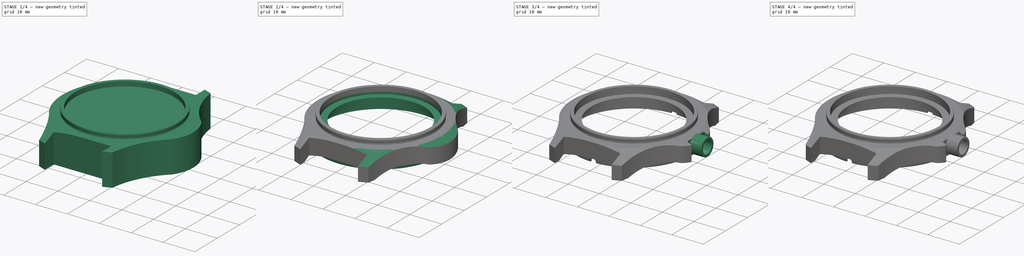
[diagram: build sequence overview — one tinted view per stage of 4, left to right]
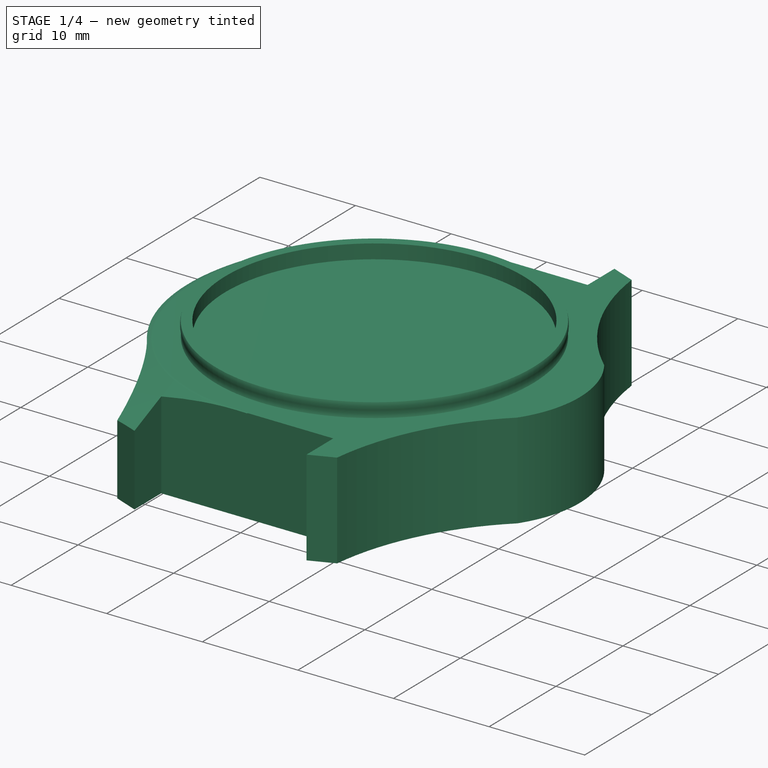
[diagram: stage 1 of 4 — iso view after this stage's code; geometry added in this stage tinted green]
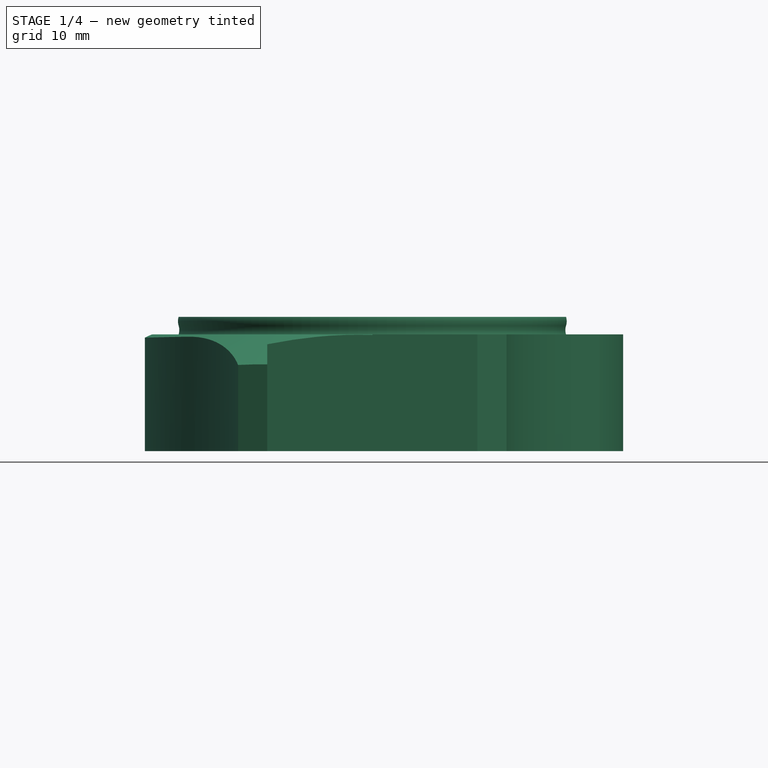
[diagram: stage 1 of 4 — front view after this stage's code; geometry added in this stage tinted green]
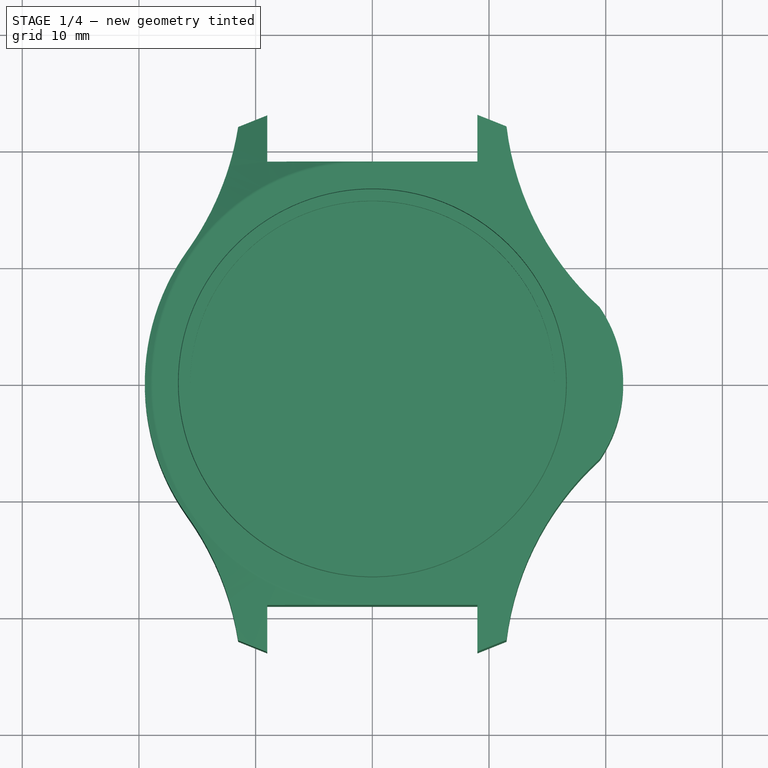
[diagram: stage 1 of 4 — top view after this stage's code; geometry added in this stage tinted green]
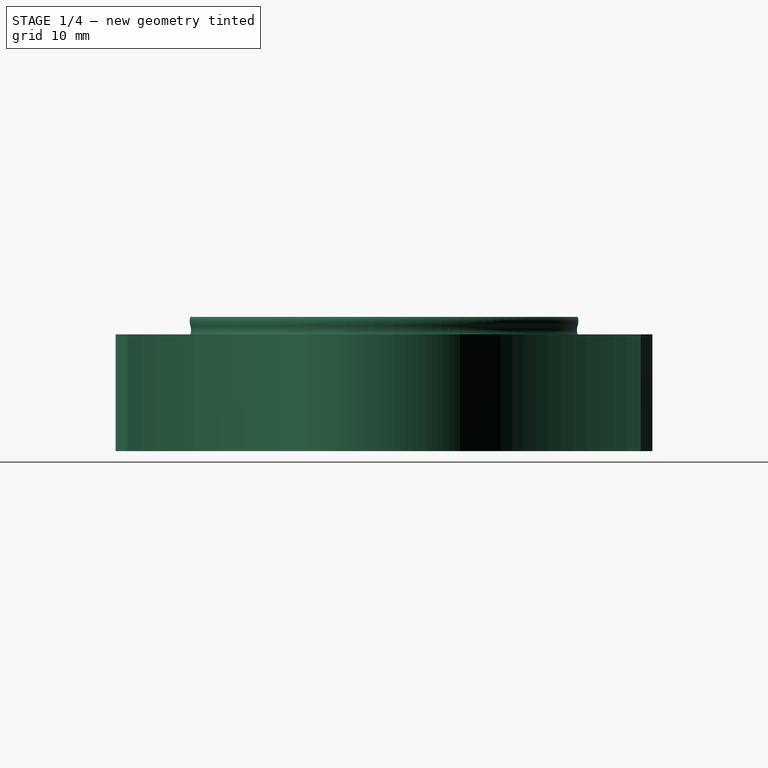
[diagram: stage 1 of 4 — right view after this stage's code; geometry added in this stage tinted green]
FCSTD DOCUMENT  (FreeCAD 0.19R20415 (Git))
Label: Vostok_Amphibia_Case_120
License: All rights reserved
LicenseURL: http://en.wikipedia.org/wiki/All_rights_reserved
objects: Sketcher::SketchObject×13, PartDesign::Pocket×4, PartDesign::Plane×3, PartDesign::Pad×2, PartDesign::Groove×2, Part::Fillet×2, PartDesign::Point×1, PartDesign::Revolution×1, PartDesign::SubtractivePipe×1, PartDesign::Mirrored×1, PartDesign::Body×1, Image::ImagePlane×1
note: 41 computed .brp shape members not serialized (recipe doc carries the construction recipe); baked Part::Feature solids carry a one-line shape summary decoded from their .brp

FEATURE [PartDesign::Point] DatumPoint
  AttacherType = Attacher::AttachEnginePoint
FEATURE [Sketcher::SketchObject] Sketch009
  MapMode = 5
  Placement = pos=(0,0,10) rot=(0,0,1;0rad)
  sketch-geometry (7):
    g0: ArcOfEllipse CenterX=0 CenterY=0 CenterZ=0 NormalX=0 NormalY=0 NormalZ=1 MajorRadius=23.015 MinorRadius=22 AngleXU=1.5708 StartAngle=0 EndAngle=3.14159
    g1: LineSegment [constr] StartX=0 StartY=23.015 StartZ=0 EndX=0 EndY=-23.015 EndZ=0
    g2: LineSegment [constr] StartX=-22 StartY=3.8e-15 StartZ=0 EndX=22 EndY=-3.8e-15 EndZ=0
    g3: GeomPoint X=-1.23e-14 Y=6.75945 Z=0
    g4: GeomPoint X=1.23e-14 Y=-6.75945 Z=0
    g5: LineSegment StartX=-10 StartY=20.5 StartZ=0 EndX=0 EndY=20.5 EndZ=0
    g6: LineSegment StartX=-7.1e-15 StartY=-20.5 StartZ=0 EndX=-10 EndY=-20.5 EndZ=0
  constraints (14):
    c: InternalAlignment(g1-g4 -> g0) x4
    c: PointOnObject(g0,g-1)
    c: Perpendicular(g-1,g1)
    c: DistanceX(g2) = -22
    c: PointOnObject(g1,g-2)
    c: PointOnObject(g0,g-2)
    c: PointOnObject(g0,g-2)
    c: PointOnObject(g5,g-2)
    c: Horizontal(g6)
    c: Symmetric(g6,g5,g-1)
    c: DistanceY(g6) = -20.5
    c: Symmetric(g5,g6,g2)
    c: DistanceX(g5) = -10
    c: PointOnObject(g6,g0)
FEATURE [PartDesign::Plane] DatumPlane
  Length = 60
  MapMode = 5
  Placement = pos=(0,0,0) rot=(0.57735,0.57735,0.57735;2.0944rad)
  ResizeMode = 0
  Support = -> [YZ_Plane]
  Width = 60
FEATURE [Sketcher::SketchObject] Sketch003
  MapMode = 5
  Placement = pos=(0,0,0) rot=(0.57735,0.57735,0.57735;2.0944rad)
  Support = -> [DatumPlane]
  sketch-geometry (6):
    g0: ArcOfCircle CenterX=-18.7887 CenterY=9.5 CenterZ=0 NormalX=0 NormalY=0 NormalZ=1 AngleXU=0 Radius=0.5 StartAngle=1.5708 EndAngle=2.00713
    g1: LineSegment StartX=-19 StartY=10 StartZ=0 EndX=-18.7887 EndY=10 EndZ=0
    g2: LineSegment StartX=-19 StartY=9.95315 StartZ=0 EndX=-28.8557 EndY=5.35739 EndZ=0
    g3: ArcOfCircle CenterX=-28.75 CenterY=5.13081 CenterZ=0 NormalX=0 NormalY=0 NormalZ=1 AngleXU=0 Radius=0.25 StartAngle=2.00713 EndAngle=3.14159
    g4: LineSegment StartX=-19 StartY=10 StartZ=0 EndX=-29 EndY=10 EndZ=0
    g5: LineSegment StartX=-29 StartY=10 StartZ=0 EndX=-29 EndY=5.13081 EndZ=0
  constraints (16):
    c: DistanceY(g4) = 10
    c: DistanceX(g4,g4) = 10
    c: Radius(g3) = 0.25
    c: Angle(g4,g2) = 0.436332
    c: Radius(g0) = 0.5
    c: DistanceX(g1) = -19
    c: Horizontal(g1)
    c: Tangent(g0,g1) = 1.5708
    c: Horizontal(g4)
    c: Coincident(g1,g4)
    c: Tangent(g0,g2) = -1.5708
    c: Vertical(g0,g1)
    c: Coincident(g5,g4)
    c: Vertical(g5)
    c: Tangent(g3,g2) = -1.5708
    c: Tangent(g3,g5) = -1.5708
FEATURE [Sketcher::SketchObject] Sketch011
  MapMode = 5
  Placement = pos=(0,0,0) rot=(0.57735,0.57735,0.57735;2.0944rad)
  Support = -> [DatumPlane]
  sketch-geometry (6):
    g0: LineSegment StartX=19 StartY=9.95315 StartZ=0 EndX=28.8557 EndY=5.35739 EndZ=0
    g1: ArcOfCircle CenterX=28.75 CenterY=5.13081 CenterZ=0 NormalX=0 NormalY=0 NormalZ=1 AngleXU=0 Radius=0.25 StartAngle=-9e-16 EndAngle=1.13446
    g2: ArcOfCircle CenterX=18.7887 CenterY=9.5 CenterZ=0 NormalX=0 NormalY=0 NormalZ=1 AngleXU=0 Radius=0.5 StartAngle=1.13446 EndAngle=1.5708
    g3: LineSegment StartX=19 StartY=10 StartZ=0 EndX=18.7887 EndY=10 EndZ=0
    g4: LineSegment StartX=19 StartY=10 StartZ=0 EndX=29 EndY=10 EndZ=0
    g5: LineSegment StartX=29 StartY=10 StartZ=0 EndX=29 EndY=5.13081 EndZ=0
  constraints (16):
    c: Tangent(g0,g1) = 1.5708
    c: Tangent(g0,g2) = 1.5708
    c: Horizontal(g3)
    c: Tangent(g2,g3) = -1.5708
    c: Radius(g1) = 0.25
    c: Vertical(g0,g3)
    c: Radius(g2) = 0.5
    c: Coincident(g3,g4)
    c: Horizontal(g4)
    c: Coincident(g4,g5)
    c: Vertical(g5)
    c: Tangent(g5,g1) = 1.5708
    c: DistanceX(g4,g4) = 10
    c: DistanceY(g4) = 10
    c: Angle(g0,g4) = 0.436332
    c: DistanceX(g3) = 19
FEATURE [Sketcher::SketchObject] Sketch
  MapMode = 5
  Support = -> [XY_Plane]
  sketch-geometry (19):
    g0: ArcOfCircle CenterX=0 CenterY=-1.1e-15 CenterZ=0 NormalX=0 NormalY=0 NormalZ=1 AngleXU=0 Radius=19.5 StartAngle=2.52076 EndAngle=3.76242
    g1: ArcOfCircle CenterX=10 CenterY=-2e-16 CenterZ=0 NormalX=0 NormalY=0 NormalZ=1 AngleXU=0 Radius=11.5 StartAngle=5.68249 EndAngle=6.88388
    g2: GeomPoint X=21.5 Y=0 Z=0
    g3: GeomPoint X=-19.5 Y=0 Z=0
    g4: ArcOfCircle CenterX=-36.1961 CenterY=25.8861 CenterZ=0 NormalX=0 NormalY=0 NormalZ=1 AngleXU=0 Radius=25 StartAngle=5.66236 EndAngle=6.12711
    g5: ArcOfCircle CenterX=-36.1961 CenterY=-25.8861 CenterZ=0 NormalX=0 NormalY=0 NormalZ=1 AngleXU=0 Radius=25 StartAngle=0.156078 EndAngle=0.62083
    g6: GeomPoint X=11.5 Y=22 Z=0
    g7: ArcOfCircle CenterX=36.3215 CenterY=24.9823 CenterZ=0 NormalX=0 NormalY=0 NormalZ=1 AngleXU=0 Radius=25 StartAngle=3.26117 EndAngle=3.97361
    g8: LineSegment StartX=-9 StartY=-23 StartZ=0 EndX=-9 EndY=-19 EndZ=0
    g9: LineSegment StartX=-9 StartY=-19 StartZ=0 EndX=9 EndY=-19 EndZ=0
    g10: LineSegment StartX=9 StartY=-19 StartZ=0 EndX=9 EndY=-23 EndZ=0
    g11: LineSegment StartX=9 StartY=-23 StartZ=0 EndX=11.5 EndY=-22 EndZ=0
    g12: LineSegment StartX=-9 StartY=-23 StartZ=0 EndX=-11.5 EndY=-22 EndZ=0
    g13: LineSegment StartX=9 StartY=23 StartZ=0 EndX=9 EndY=19 EndZ=0
    g14: LineSegment StartX=9 StartY=19 StartZ=0 EndX=-9 EndY=19 EndZ=0
    g15: LineSegment StartX=-9 StartY=19 StartZ=0 EndX=-9 EndY=23 EndZ=0
    g16: LineSegment StartX=-9 StartY=23 StartZ=0 EndX=-11.5 EndY=22 EndZ=0
    g17: LineSegment StartX=9 StartY=23 StartZ=0 EndX=11.5 EndY=22 EndZ=0
    g18: ArcOfCircle CenterX=36.3215 CenterY=-24.9823 CenterZ=0 NormalX=0 NormalY=0 NormalZ=1 AngleXU=0 Radius=25 StartAngle=2.30958 EndAngle=3.02202
  constraints (47):
    c: PointOnObject(g2,g1)
    c: PointOnObject(g3,g0)
    c: PointOnObject(g3,g-1)
    c: PointOnObject(g2,g-1)
    c: DistanceX(g3,g2) = 41
    c: DistanceX(g3) = -19.5
    c: Symmetric(g0,g0,g-1)
    c: Tangent(g0,g5) = 1.5708
    c: Symmetric(g5,g4,g-1)
    c: Tangent(g0,g4) = 1.5708
    c: Symmetric(g6,g4,g-2)
    c: DistanceX(g4,g6) = 23
    c: DistanceY(g5,g4) = 44
    c: Radius(g4) = 25
    c: Coincident(g0,g-1)
    c: Coincident(g7,g6)
    c: Equal(g7,g4)
    c: Vertical(g8)
    c: Coincident(g8,g9)
    c: Coincident(g9,g10)
    c: Coincident(g10,g11)
    c: Coincident(g8,g12)
    c: Coincident(g12,g5)
    c: Vertical(g13)
    c: Coincident(g13,g14)
    c: Horizontal(g14)
    c: Coincident(g14,g15)
    c: Coincident(g15,g16)
    c: Coincident(g16,g4)
    c: Coincident(g13,g17)
    c: Coincident(g17,g6)
    c: Symmetric(g13,g15,g-2)
    c: DistanceX(g15,g13) = 18
    c: DistanceY(g13,g13) = 4
    c: DistanceY(g10,g13) = 46
    c: Symmetric(g8,g10,g-2)
    c: Symmetric(g9,g8,g-2)
    c: Symmetric(g8,g14,g-1)
    c: Symmetric(g8,g15,g-1)
    c: Symmetric(g11,g6,g-1)
    c: Coincident(g7,g1)
    c: Symmetric(g1,g1,g-1)
    c: Radius(g1) = 11.5
    c: Coincident(g18,g11)
    c: Coincident(g18,g1)
    c: Equal(g18,g7)
    c: DistanceY(g1,g1) = 13
FEATURE [PartDesign::Pad] Pad
  AllowMultiFace = false
  Length = 10
  Length2 = 100
  Profile = -> Sketch
  Type = 0
FEATURE [Sketcher::SketchObject] Sketch001
  MapMode = 5
  Placement = pos=(0,0,0) rot=(1,0,0;1.5708rad)
  Support = -> [XZ_Plane]
  sketch-geometry (5):
    g0: LineSegment StartX=15.6 StartY=10 StartZ=0 EndX=15.6 EndY=11.5 EndZ=0
    g1: LineSegment StartX=15.6 StartY=11.5 StartZ=0 EndX=16.6 EndY=11.5 EndZ=0
    g2: ArcOfCircle CenterX=17.7924 CenterY=10.375 CenterZ=0 NormalX=0 NormalY=0 NormalZ=1 AngleXU=0 Radius=1.25 StartAngle=2.8369 EndAngle=3.44629
    g3: LineSegment StartX=15.6 StartY=10 StartZ=0 EndX=16.6 EndY=10 EndZ=0
    g4: ArcOfCircle CenterX=15.4076 CenterY=11.125 CenterZ=0 NormalX=0 NormalY=0 NormalZ=1 AngleXU=0 Radius=1.25 StartAngle=5.97849 EndAngle=6.58788
  constraints (15):
    c: Vertical(g0)
    c: Coincident(g0,g1)
    c: Horizontal(g1)
    c: Coincident(g0,g3)
    c: Horizontal(g3)
    c: Coincident(g2,g3)
    c: Coincident(g4,g1)
    c: DistanceX(g1,g1) = 1
    c: Tangent(g4,g2) = 1.5708
    c: Vertical(g1,g2)
    c: DistanceY(g0,g0) = 1.5
    c: Symmetric(g1,g2,g2)
    c: Radius(g4) = 1.25
    c: DistanceY(g2) = 10
    c: DistanceX(g0) = 15.6
FEATURE [PartDesign::Revolution] Revolution
  AllowMultiFace = false
  Angle = 360
  Axis = (0,-2e-16,1)
  Base = (0,0,0)
  BaseFeature = -> Pad
  Profile = -> Sketch001
  ReferenceAxis = -> Sketch001 [V_Axis]
  Reversed = true
FEATURE [PartDesign::Plane] DatumPlane001
  Length = 60
  MapMode = 5
  Placement = pos=(0,0,0) rot=(1,0,0;1.5708rad)
  ResizeMode = 0
  Support = -> [XZ_Plane]
  Width = 60
FEATURE [Sketcher::SketchObject] Sketch005
  MapMode = 5
  Placement = pos=(0,0,0) rot=(1,0,0;1.5708rad)
  Support = -> [DatumPlane001]
  sketch-geometry (6):
    g0: LineSegment StartX=-24 StartY=10 StartZ=0 EndX=-19 EndY=10 EndZ=0
    g1: LineSegment StartX=-24 StartY=10 StartZ=0 EndX=-24 EndY=7.46235 EndZ=0
    g2: ArcOfCircle CenterX=-18.7887 CenterY=9.5 CenterZ=0 NormalX=0 NormalY=0 NormalZ=1 AngleXU=0 Radius=0.5 StartAngle=1.5708 EndAngle=2.00713
    g3: LineSegment StartX=-19 StartY=10 StartZ=0 EndX=-18.7887 EndY=10 EndZ=0
    g4: LineSegment StartX=-19 StartY=9.95315 StartZ=0 EndX=-23.8557 EndY=7.68892 EndZ=0
    g5: ArcOfCircle CenterX=-23.75 CenterY=7.46235 CenterZ=0 NormalX=0 NormalY=0 NormalZ=1 AngleXU=0 Radius=0.25 StartAngle=2.00713 EndAngle=3.14159
  constraints (17):
    c: Horizontal(g0)
    c: DistanceY(g0) = 10
    c: DistanceX(g0) = -19
    c: DistanceX(g0,g0) = 5
    c: Coincident(g1,g0)
    c: Vertical(g1)
    c: Coincident(g3,g0)
    c: Coincident(g3,g2)
    c: Tangent(g3,g2)
    c: Horizontal(g3)
    c: Vertical(g2,g0)
    c: Radius(g2) = 0.5
    c: Tangent(g2,g4) = -1.5708
    c: Tangent(g4,g5) = -1.5708
    c: Tangent(g5,g1) = -1.5708
    c: Radius(g5) = 0.25
    c: Angle(g0,g4) = 0.436332
FEATURE [PartDesign::SubtractivePipe] SubtractivePipe
  AllowMultiFace = false
  AuxilleryCurvelinear = true
  AuxillerySpineTangent = false
  BaseFeature = -> Revolution
  Binormal = (0,0,0)
  Mode = 0
  Profile = -> Sketch003
  Sections = -> [Sketch005,Sketch011]
  Spine = -> Sketch009 [Edge1]
  SpineTangent = false
  Transformation = 1
  Transition = 2
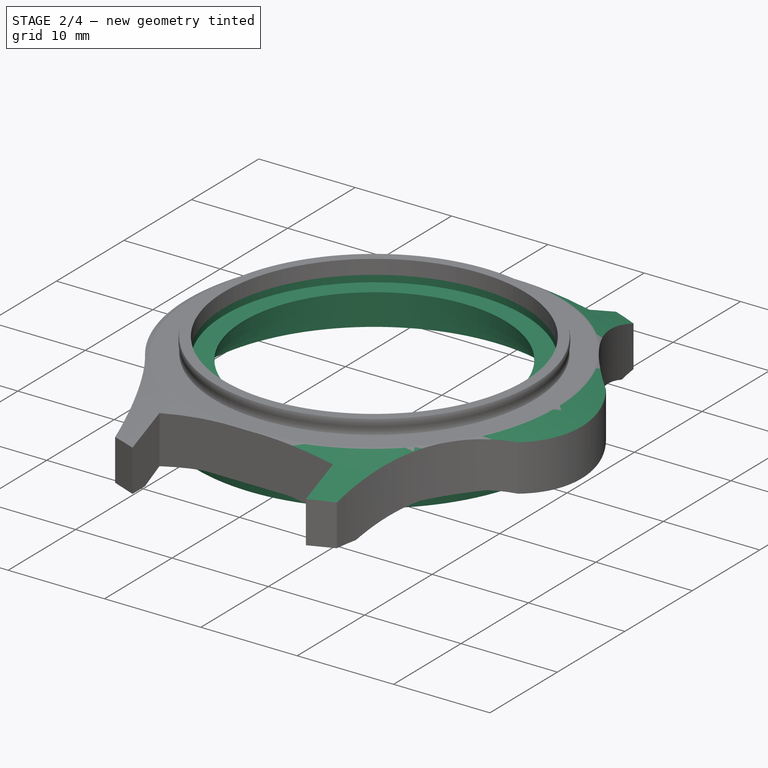
[diagram: stage 2 of 4 — iso view after this stage's code; geometry added in this stage tinted green]
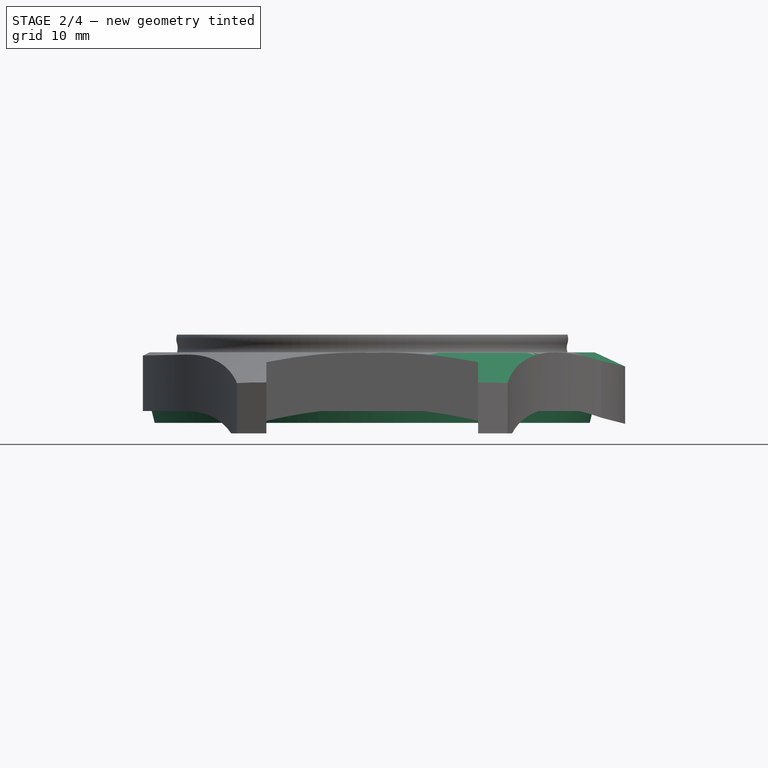
[diagram: stage 2 of 4 — front view after this stage's code; geometry added in this stage tinted green]
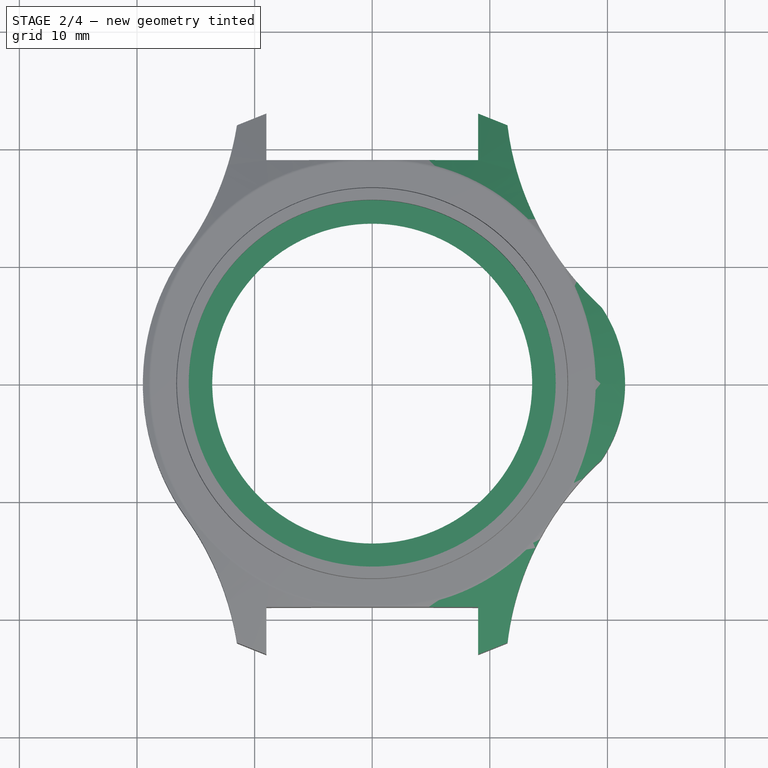
[diagram: stage 2 of 4 — top view after this stage's code; geometry added in this stage tinted green]
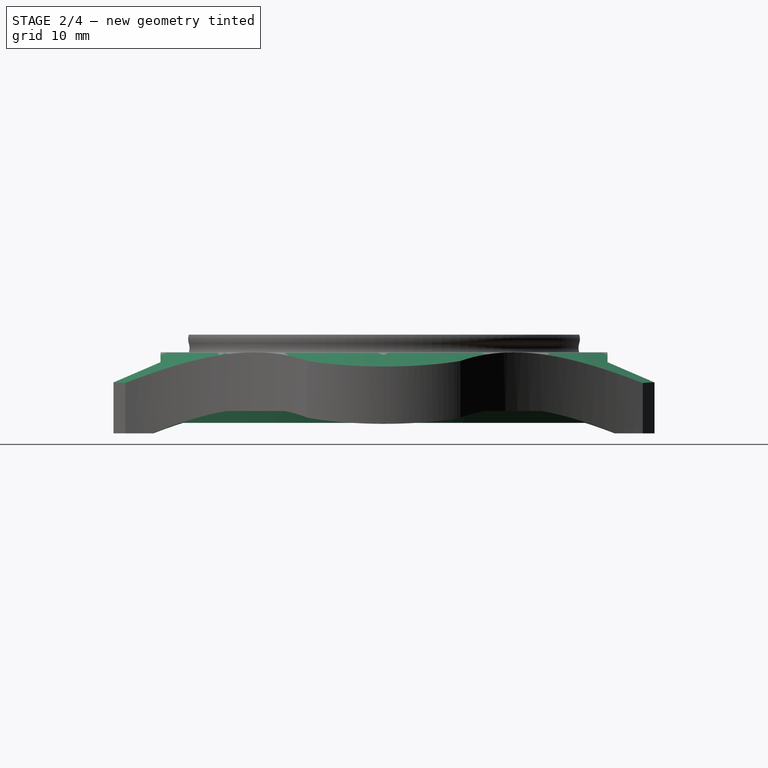
[diagram: stage 2 of 4 — right view after this stage's code; geometry added in this stage tinted green]
FEATURE [PartDesign::Mirrored] Mirrored
  BaseFeature = -> SubtractivePipe
  MirrorPlane = -> YZ_Plane
  Originals = -> [SubtractivePipe]
FEATURE [Sketcher::SketchObject] Sketch013
  MapMode = 5
  Placement = pos=(0,0,0) rot=(1,0,0;1.5708rad)
  Support = -> [XZ_Plane]
  sketch-geometry (4):
    g0: LineSegment StartX=-29.7309 StartY=0 StartZ=0 EndX=29.7309 EndY=0 EndZ=0
    g1: LineSegment StartX=29.7309 StartY=0 StartZ=0 EndX=29.7309 EndY=3 EndZ=0
    g2: LineSegment StartX=29.7309 StartY=3 StartZ=0 EndX=-29.7309 EndY=3 EndZ=0
    g3: LineSegment StartX=-29.7309 StartY=3 StartZ=0 EndX=-29.7309 EndY=0 EndZ=0
  constraints (10):
    c: Coincident(g0,g1)
    c: Coincident(g1,g2)
    c: Coincident(g2,g3)
    c: Coincident(g3,g0)
    c: Horizontal(g0)
    c: Vertical(g1)
    c: Vertical(g3)
    c: PointOnObject(g0,g-1)
    c: DistanceY(g1,g1) = 3
    c: Symmetric(g1,g2,g-2)
FEATURE [PartDesign::Pocket] Pocket
  AllowMultiFace = false
  BaseFeature = -> Mirrored
  Length = 5
  Length2 = 100
  Midplane = true
  Profile = -> Sketch013
  Type = 1
FEATURE [Sketcher::SketchObject] Sketch014
  MapMode = 5
  Placement = pos=(0,0,0) rot=(0.57735,0.57735,0.57735;2.0944rad)
  Support = -> [YZ_Plane]
  sketch-geometry (20):
    g0: LineSegment StartX=0 StartY=0 StartZ=0 EndX=0 EndY=19.1 EndZ=0
    g1: LineSegment StartX=18 StartY=6 StartZ=0 EndX=15.5 EndY=6 EndZ=0
    g2: LineSegment StartX=15.5 StartY=6 StartZ=0 EndX=15.5 EndY=7.5 EndZ=0
    g3: LineSegment StartX=15.5 StartY=7.5 StartZ=0 EndX=14.25 EndY=7.5 EndZ=0
    g4: LineSegment StartX=14.25 StartY=7.5 StartZ=0 EndX=14.25 EndY=9.1 EndZ=0
    g5: LineSegment StartX=14.25 StartY=9.1 StartZ=0 EndX=13.6 EndY=9.1 EndZ=0
    g6: LineSegment StartX=15.6 StartY=19.1 StartZ=0 EndX=0 EndY=19.1 EndZ=0
    g7: LineSegment StartX=13.6 StartY=9.1 StartZ=0 EndX=13.6 EndY=9.3 EndZ=0
    g8: LineSegment StartX=13.6 StartY=9.3 StartZ=0 EndX=15.6 EndY=9.3 EndZ=0
    g9: LineSegment StartX=15.6 StartY=9.3 StartZ=0 EndX=15.6 EndY=19.1 EndZ=0
    g10: LineSegment StartX=18 StartY=6 StartZ=0 EndX=18 EndY=4 EndZ=0
    g11: LineSegment StartX=23 StartY=3.1 StartZ=0 EndX=27 EndY=3.1 EndZ=0
    g12: LineSegment StartX=27 StartY=3.1 StartZ=0 EndX=27 EndY=0 EndZ=0
    g13: LineSegment StartX=0 StartY=0 StartZ=0 EndX=27 EndY=0 EndZ=0
    g14: LineSegment [constr] StartX=0 StartY=10 StartZ=0 EndX=24 EndY=10 EndZ=0
    g15: LineSegment StartX=18.75 StartY=5 StartZ=0 EndX=19.5 EndY=5 EndZ=0
    g16: LineSegment StartX=18 StartY=4 StartZ=0 EndX=18.5 EndY=4 EndZ=0
    g17: LineSegment StartX=18.5 StartY=4 StartZ=0 EndX=18.75 EndY=5 EndZ=0
    g18: LineSegment StartX=18 StartY=4 StartZ=0 EndX=18 EndY=4 EndZ=0
    g19: LineSegment StartX=19.5 StartY=5 StartZ=0 EndX=23 EndY=3.1 EndZ=0
  constraints (58):
    c: DistanceX(g10) = 18
    c: Vertical(g0)
    c: Horizontal(g1)
    c: Coincident(g1,g2)
    c: Vertical(g2)
    c: Coincident(g2,g3)
    c: Horizontal(g3)
    c: Coincident(g3,g4)
    c: Vertical(g4)
    c: DistanceY(g2,g2) = 1.5
    c: Coincident(g4,g5)
    c: Horizontal(g5)
    c: Horizontal(g6)
    c: DistanceY(g5,g6) = 10
    c: Coincident(g0,g6)
    c: DistanceX(g3) = 14.25
    c: Coincident(g5,g7)
    c: Vertical(g7)
    c: Coincident(g7,g8)
    c: Horizontal(g8)
    c: Coincident(g6,g9)
    c: DistanceY(g5,g7) = 0.2
    c: DistanceX(g1,g1) = 2.5
    c: DistanceY(g10,g8) = 5.3
    c: DistanceX(g6) = 15.6
    c: Vertical(g9)
    c: DistanceX(g8,g8) = 2
    c: Coincident(g10,g1)
    c: Vertical(g10)
    c: Vertical(g12)
    c: Horizontal(g11)
    c: DistanceX(g12) = 27
    c: DistanceY(g8) = 9.3
    c: Coincident(g-1,g0)
    c: Coincident(g0,g13)
    c: PointOnObject(g13,g-1)
    c: Coincident(g11,g12)
    c: PointOnObject(g14,g0)
    c: Horizontal(g14)
    c: DistanceY(g14) = 10
    c: DistanceX(g14) = 24
    c: DistanceX(g15) = 18.75
    c: Horizontal(g15)
    c: Horizontal(g16)
    c: Coincident(g16,g17)
    c: Coincident(g17,g15)
    c: Coincident(g10,g18)
    c: Coincident(g18,g16)
    c: Vertical(g18)
    c: Coincident(g12,g13)
    c: DistanceY(g12,g12) = 3.1
    c: DistanceY(g16) = 4
    c: DistanceX(g15,g15) = 0.75
    c: DistanceY(g15,g14) = 5
    c: DistanceX(g15,g11) = 3.5
    c: DistanceX(g16,g16) = 0.5
    c: Coincident(g15,g19)
    c: Coincident(g19,g11)
FEATURE [PartDesign::Groove] Groove
  AllowMultiFace = false
  Angle = 360
  Axis = (-2e-16,3e-16,1)
  Base = (0,0,0)
  BaseFeature = -> Pocket
  Profile = -> Sketch014
  ReferenceAxis = -> Sketch014 [V_Axis]
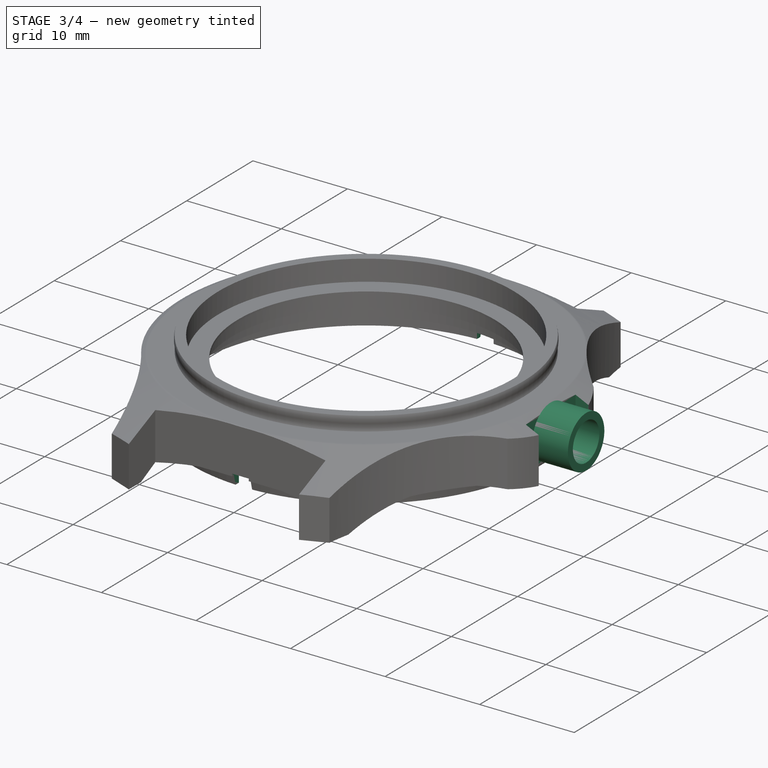
[diagram: stage 3 of 4 — iso view after this stage's code; geometry added in this stage tinted green]
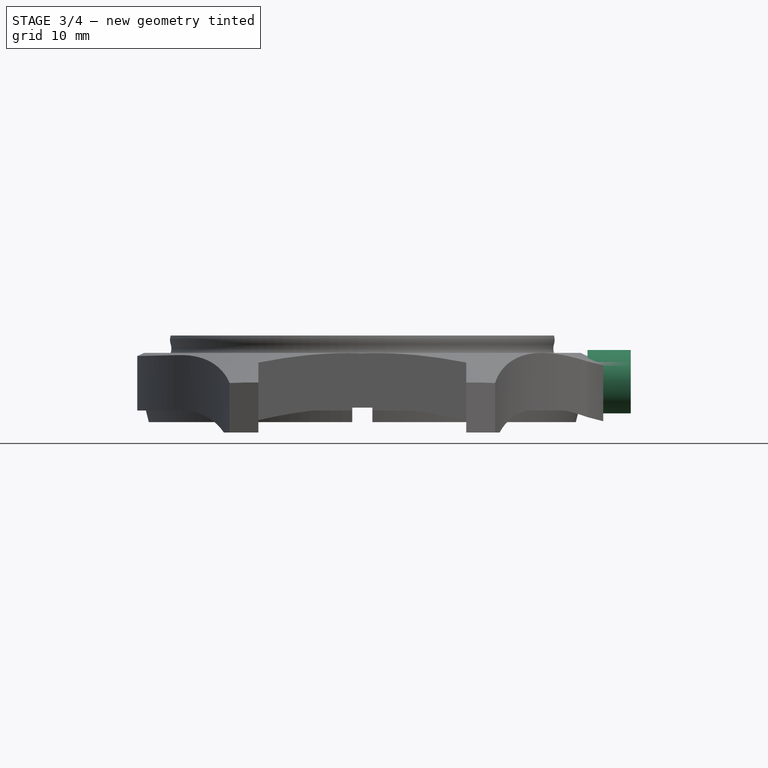
[diagram: stage 3 of 4 — front view after this stage's code; geometry added in this stage tinted green]
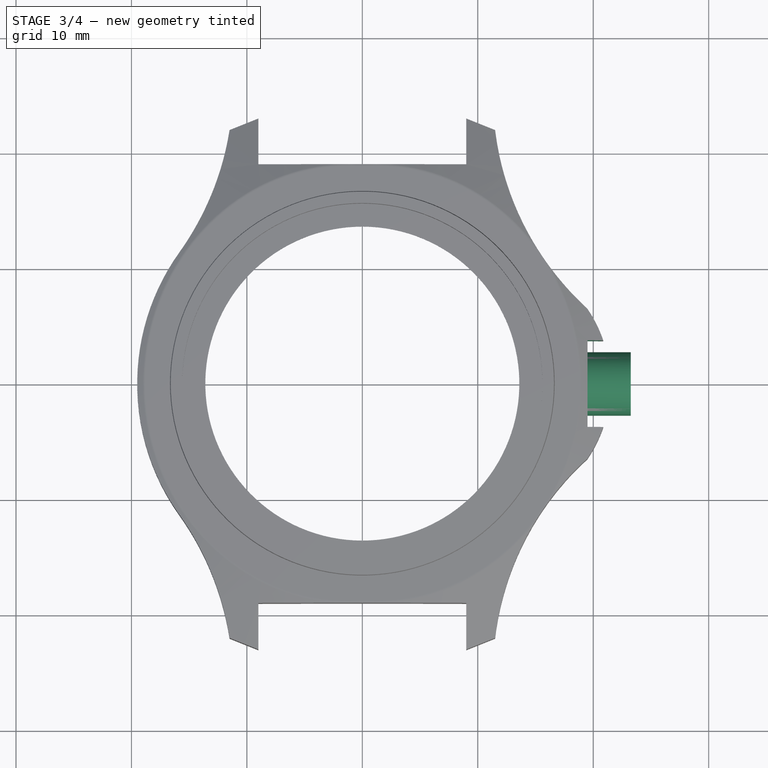
[diagram: stage 3 of 4 — top view after this stage's code; geometry added in this stage tinted green]
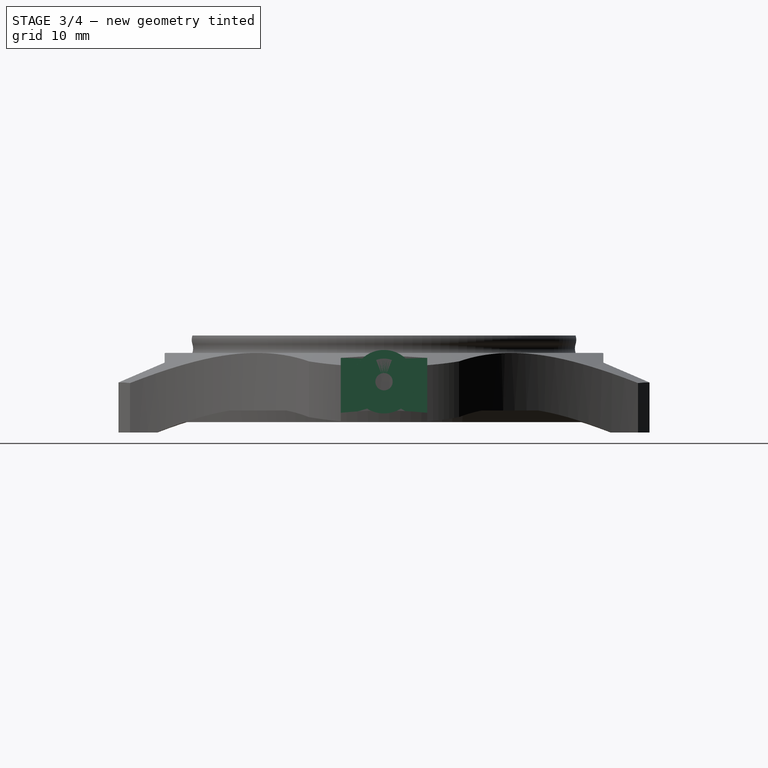
[diagram: stage 3 of 4 — right view after this stage's code; geometry added in this stage tinted green]
FEATURE [Sketcher::SketchObject] Sketch020
  MapMode = 5
  Placement = pos=(0,0,0) rot=(1,0,0;1.5708rad)
  Support = -> [XZ_Plane]
  sketch-geometry (4):
    g0: LineSegment StartX=-0.875 StartY=5.25 StartZ=0 EndX=0.875 EndY=5.25 EndZ=0
    g1: LineSegment StartX=0.875 StartY=5.25 StartZ=0 EndX=0.875 EndY=3.5 EndZ=0
    g2: LineSegment StartX=0.875 StartY=3.5 StartZ=0 EndX=-0.875 EndY=3.5 EndZ=0
    g3: LineSegment StartX=-0.875 StartY=3.5 StartZ=0 EndX=-0.875 EndY=5.25 EndZ=0
  constraints (11):
    c: Coincident(g0,g1)
    c: Coincident(g1,g2)
    c: Coincident(g2,g3)
    c: Coincident(g3,g0)
    c: Horizontal(g2)
    c: Vertical(g1)
    c: Vertical(g3)
    c: Symmetric(g0,g0,g-2)
    c: DistanceY(g1) = 3.5
    c: DistanceX(g0,g0) = 1.75
    c: Equal(g3,g0)
FEATURE [PartDesign::Pocket] Pocket001
  AllowMultiFace = false
  BaseFeature = -> Groove
  Length = 5
  Length2 = 100
  Midplane = true
  Profile = -> Sketch020
  Type = 1
FEATURE [PartDesign::Plane] DatumPlane002
  AttachmentOffset = pos=(0,0,19.5) rot=(0,0,1;0rad)
  Length = 60
  MapMode = 2
  Placement = pos=(19.5,-4.3e-15,4.3e-15) rot=(0.57735,0.57735,0.57735;2.0944rad)
  ResizeMode = 0
  Support = -> [YZ_Plane]
  Width = 60
FEATURE [Sketcher::SketchObject] Sketch021  label="  "
  MapMode = 2
  Placement = pos=(19.5,-4.3e-15,4.3e-15) rot=(0.57735,0.57735,0.57735;2.0944rad)
  Support = -> [DatumPlane002]
  sketch-geometry (4):
    g0: LineSegment StartX=-3.75 StartY=20 StartZ=0 EndX=3.75 EndY=20 EndZ=0
    g1: LineSegment StartX=3.75 StartY=20 StartZ=0 EndX=3.75 EndY=0 EndZ=0
    g2: LineSegment StartX=3.75 StartY=0 StartZ=0 EndX=-3.75 EndY=0 EndZ=0
    g3: LineSegment StartX=-3.75 StartY=0 StartZ=0 EndX=-3.75 EndY=20 EndZ=0
  constraints (11):
    c: Coincident(g0,g1)
    c: Coincident(g1,g2)
    c: Coincident(g2,g3)
    c: Coincident(g3,g0)
    c: Horizontal(g2)
    c: Vertical(g1)
    c: Vertical(g3)
    c: Symmetric(g0,g0,g-2)
    c: DistanceX(g0,g0) = 7.5
    c: DistanceY(g1,g1) = 20
    c: PointOnObject(g-1,g2)
FEATURE [Sketcher::SketchObject] Sketch028
  MapMode = 5
  Placement = pos=(19.5,-4.3e-15,4.3e-15) rot=(-0.57735,0.57735,0.57735;4.18879rad)
  Support = -> [DatumPlane002]
  sketch-geometry (1):
    g0: Circle CenterX=0 CenterY=7.5 CenterZ=0 NormalX=0 NormalY=0 NormalZ=1 AngleXU=0 Radius=2.75
  constraints (3):
    c: PointOnObject(g0,g-2)
    c: DistanceY(g0) = 7.5
    c: Radius(g0) = 2.75
FEATURE [Sketcher::SketchObject] Sketch029
  MapMode = 5
  Placement = pos=(0,0,0) rot=(1,0,0;1.5708rad)
  Support = -> [XZ_Plane]
  sketch-geometry (6):
    g0: LineSegment StartX=0 StartY=8.25 StartZ=0 EndX=0 EndY=7.5 EndZ=0
    g1: LineSegment StartX=0 StartY=7.5 StartZ=0 EndX=25 EndY=7.5 EndZ=0
    g2: LineSegment StartX=25 StartY=7.5 StartZ=0 EndX=25 EndY=9.5 EndZ=0
    g3: LineSegment StartX=25 StartY=9.5 StartZ=0 EndX=20.75 EndY=9.5 EndZ=0
    g4: LineSegment StartX=20.75 StartY=9.5 StartZ=0 EndX=20.75 EndY=8.25 EndZ=0
    g5: LineSegment StartX=20.75 StartY=8.25 StartZ=0 EndX=0 EndY=8.25 EndZ=0
  constraints (18):
    c: Coincident(g0,g1)
    c: Horizontal(g1)
    c: Coincident(g1,g2)
    c: Vertical(g2)
    c: Coincident(g2,g3)
    c: Horizontal(g3)
    c: Coincident(g3,g4)
    c: Vertical(g4)
    c: Coincident(g4,g5)
    c: Coincident(g5,g0)
    c: PointOnObject(g0,g-2)
    c: Vertical(g0)
    c: Horizontal(g5)
    c: DistanceY(g1) = 7.5
    c: DistanceY(g1,g4) = 0.75
    c: DistanceY(g2,g2) = 2
    c: DistanceX(g2) = 25
    c: DistanceX(g3) = 20.75
FEATURE [Sketcher::SketchObject] Sketch032
  MapMode = 5
  Placement = pos=(0,0,0) rot=(0.57735,0.57735,0.57735;2.0944rad)
  Support = -> [YZ_Plane]
  sketch-geometry (2):
    g0: Circle CenterX=21.5 CenterY=5.5 CenterZ=0 NormalX=0 NormalY=0 NormalZ=1 AngleXU=0 Radius=0.25
    g1: Circle CenterX=-21.5 CenterY=5.5 CenterZ=0 NormalX=0 NormalY=0 NormalZ=1 AngleXU=0 Radius=0.25
  constraints (5):
    c: Equal(g1,g0)
    c: Radius(g0) = 0.25
    c: Symmetric(g0,g1,g-2)
    c: DistanceX(g0) = 21.5
    c: DistanceY(g0) = 5.5
FEATURE [PartDesign::Pocket] Pocket002
  BaseFeature = -> Pocket001
  Length = 5
  Length2 = 100
  Profile = -> Sketch021
  Reversed = true
  Type = 0
FEATURE [PartDesign::Pad] Pad001
  BaseFeature = -> Pocket002
  Length = 3.75
  Length2 = 100
  Profile = -> Sketch028
  Reversed = true
  Type = 0
FEATURE [PartDesign::Groove] Groove001
  Angle = 360
  Axis = (1,0,0)
  Base = (0,-1.7e-15,7.5)
  BaseFeature = -> Pad001
  Profile = -> Sketch029
  ReferenceAxis = -> Sketch029 [Edge2]
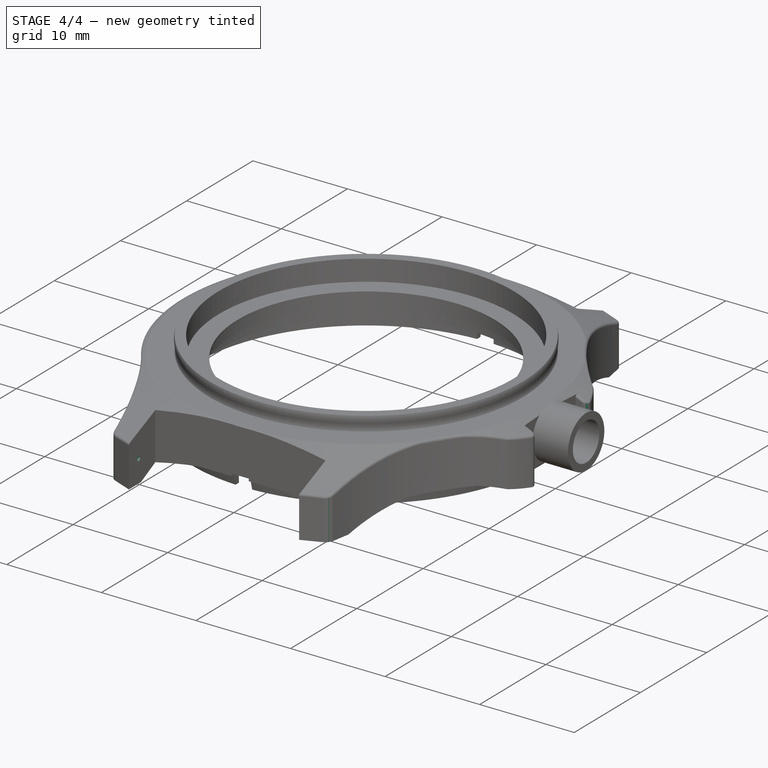
[diagram: stage 4 of 4 — iso view after this stage's code; geometry added in this stage tinted green]
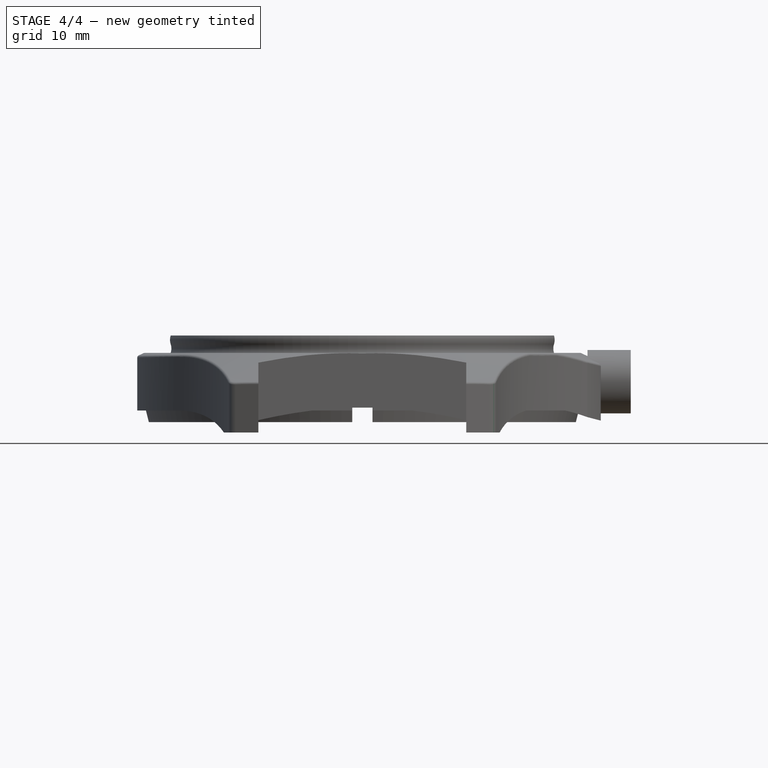
[diagram: stage 4 of 4 — front view after this stage's code; geometry added in this stage tinted green]
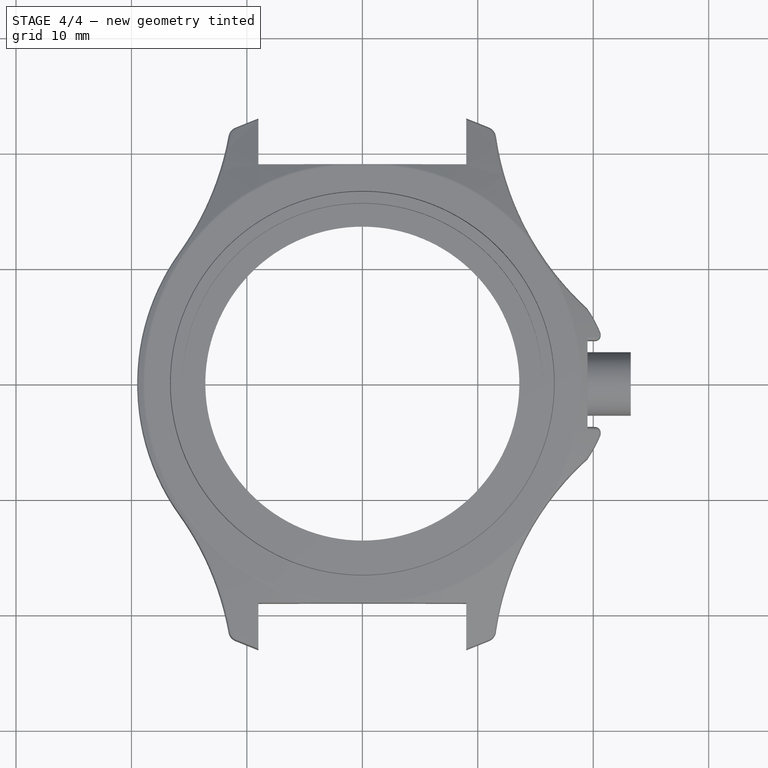
[diagram: stage 4 of 4 — top view after this stage's code; geometry added in this stage tinted green]
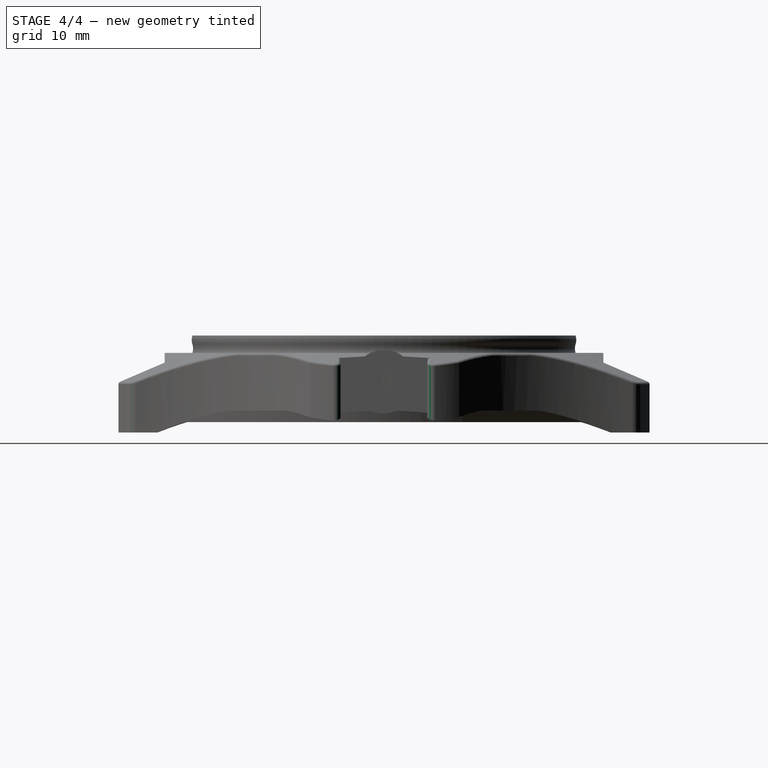
[diagram: stage 4 of 4 — right view after this stage's code; geometry added in this stage tinted green]
FEATURE [PartDesign::Pocket] Pocket003
  BaseFeature = -> Groove001
  Length = 18.5
  Length2 = 100
  Midplane = true
  Profile = -> Sketch032
  Type = 0
FEATURE [PartDesign::Body] Body  label="120_Case"
  Group = -> [Sketch,Pad,Sketch001,Revolution,DatumPlane,DatumPlane001,DatumPoint,Sketch003,Sketch005,Sketch009,Sketch011,Sketch013,Sketch014,Sketch020,Sketch021,SubtractivePipe,Mirrored,Pocket,Groove,Pocket001,DatumPlane002,Sketch028,Sketch029,Sketch032,Pocket002,Pad001,Groove001,Pocket003]
  Origin = -> Origin
  Tip = -> Pocket003
FEATURE [Image::ImagePlane] ImagePlane
  Placement = pos=(-0.9,0,0) rot=(0,0,1;0rad)
  XSize = 77.4373
  YSize = 115.912
FEATURE [Part::Fillet] Fillet
  Base = -> Pocket003
  Edges = 6 edges: [Edge13 r=1,Edge85 r=0.5,Edge113 r=1,Edge139 r=1,Edge146 r=1,Edge152 r=0.5]
FEATURE [Part::Fillet] Fillet001
  Base = -> Fillet
  Edges = 7 edges r=0.25: [Edge6,Edge35,Edge42,Edge86,Edge140,Edge141,Edge142]
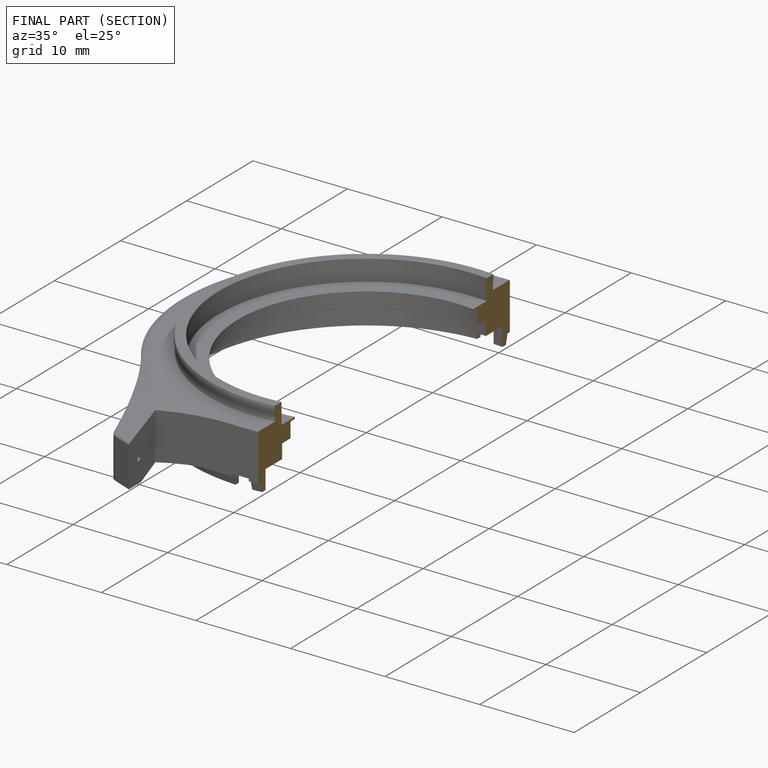
[diagram: finished part — half-section view (interior)]
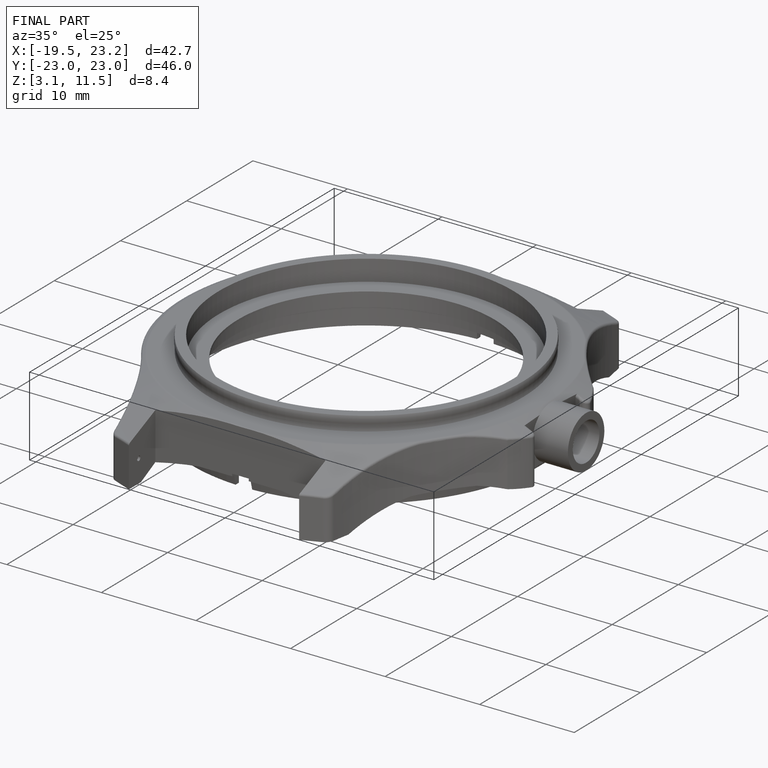
[diagram: finished part — iso view with bounding-box wireframe]
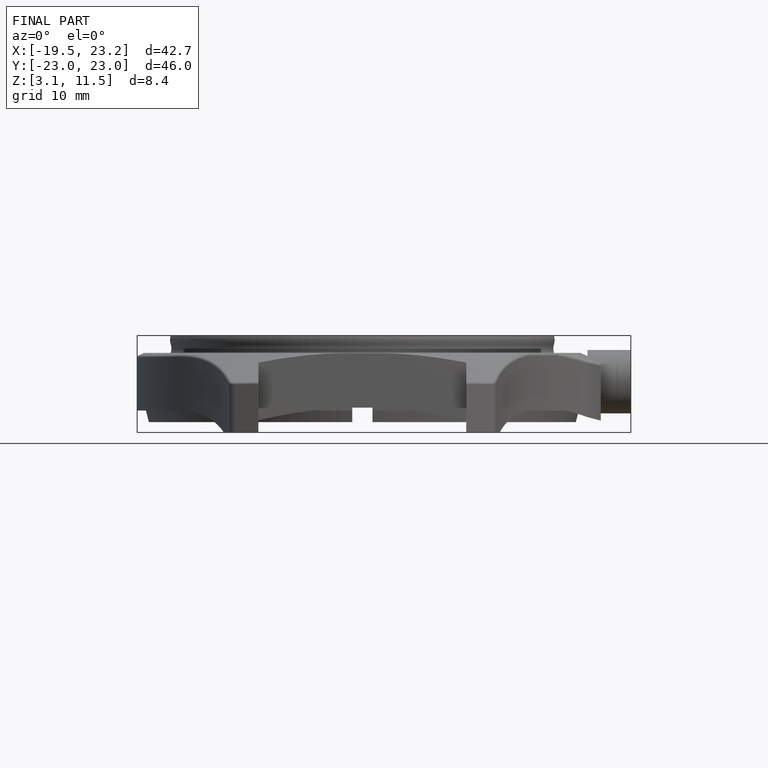
[diagram: finished part — front view with bounding-box wireframe]
